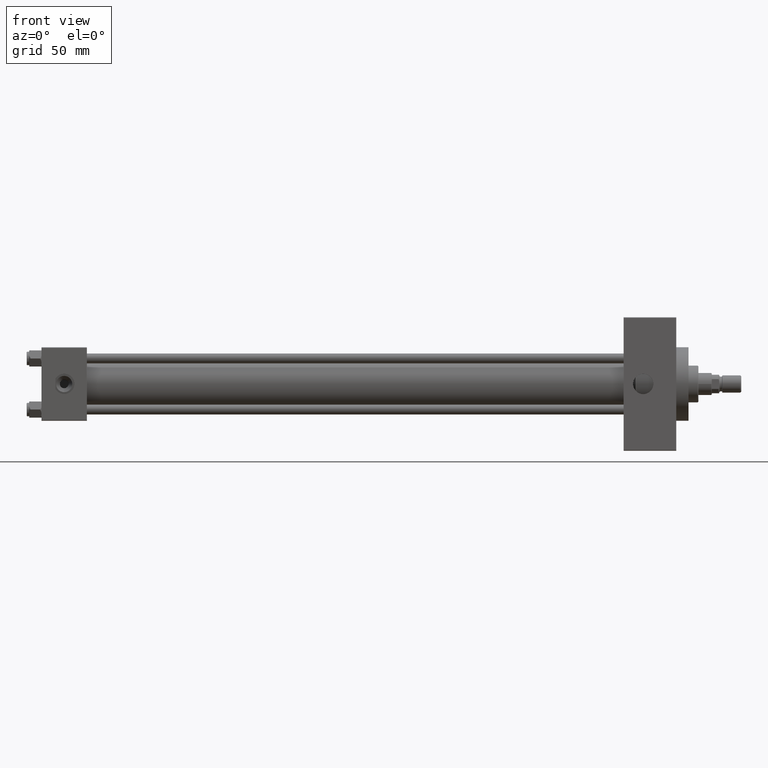
[diagram: clean part render]
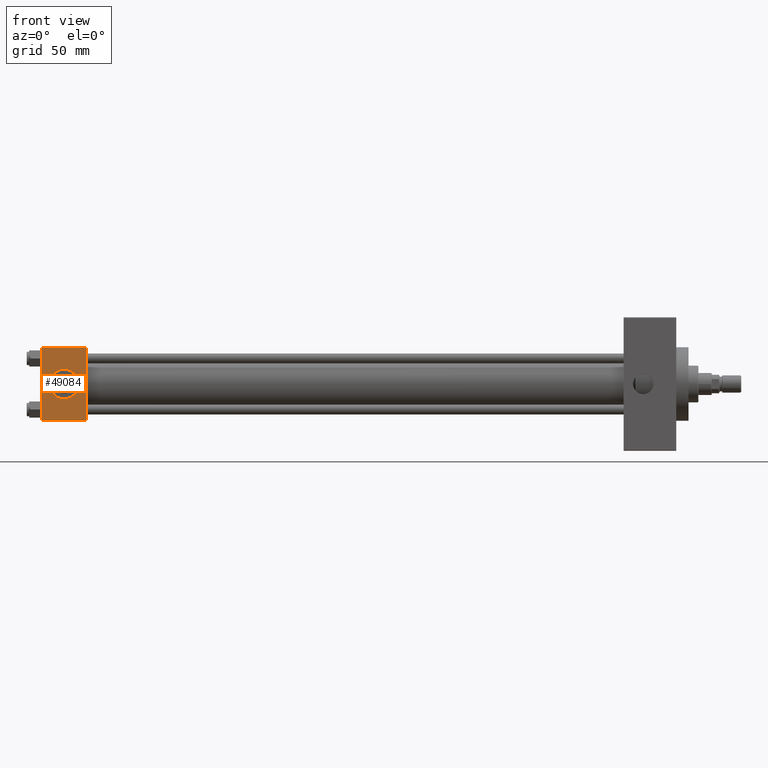
[diagram: same view with one face highlighted and labeled with its STEP entity id]
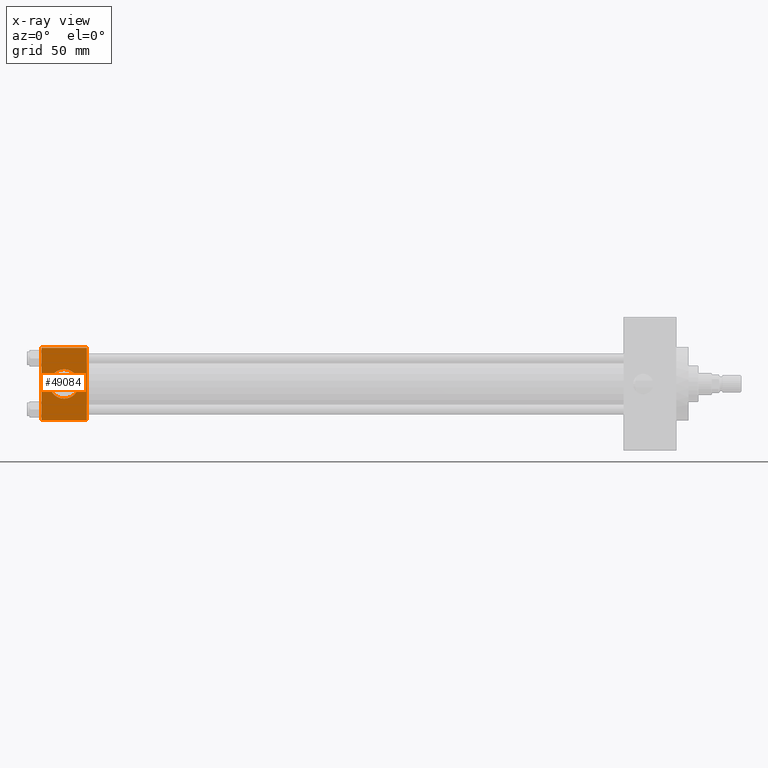
[diagram: x-ray of the same camera — body ghosted, the highlighted face saturated]
A machine part, front view. The second image highlights one B-rep face of the part: STEP entity #49084.
The next image is the same camera in x-ray: the body ghosted, the highlighted face saturated — about 0% of this face is hidden behind the body in this view.
In plain terms, the highlighted planar face has unit normal (0, 1, 0).
Its self-contained STEP definition (entity closure, byte-faithful):
#1728 = LINE ( 'NONE', #16844, #23287 ) ;
#1926 = DIRECTION ( 'NONE',  ( 0.000000000000000000, -1.000000000000000000, -8.673617379884036705E-17 ) ) ;
#2771 = DIRECTION ( 'NONE',  ( 0.000000000000000000, 0.000000000000000000, -1.000000000000000000 ) ) ;
#4230 = CARTESIAN_POINT ( 'NONE',  ( 0.000000000000000000, -30.00000000000000000, -29.50000000000001776 ) ) ;
#4885 = VERTEX_POINT ( 'NONE', #38128 ) ;
#5333 = DIRECTION ( 'NONE',  ( 0.000000000000000000, 0.000000000000000000, -1.000000000000000000 ) ) ;
#7660 = VECTOR ( 'NONE', #33114, 1000.000000000000000 ) ;
#8353 = EDGE_CURVE ( 'NONE', #29908, #4885, #30165, .T. ) ;
#11756 = EDGE_CURVE ( 'NONE', #31087, #48489, #15549, .T. ) ;
#12876 = CARTESIAN_POINT ( 'NONE',  ( 18.50000000000000000, -30.00000000000000000, 0.000000000000000000 ) ) ;
#13013 = EDGE_CURVE ( 'NONE', #48489, #31087, #30907, .T. ) ;
#14320 = DIRECTION ( 'NONE',  ( 1.000000000000000000, 0.000000000000000000, 0.000000000000000000 ) ) ;
#15549 = CIRCLE ( 'NONE', #20402, 12.00000000000000178 ) ;
#16359 = FACE_OUTER_BOUND ( 'NONE', #26194, .T. ) ;
#16414 = DIRECTION ( 'NONE',  ( 0.000000000000000000, -1.000000000000000000, -8.673617379884036705E-17 ) ) ;
#16844 = CARTESIAN_POINT ( 'NONE',  ( 0.000000000000000000, -30.00000000000000000, 29.99999999999999289 ) ) ;
#17376 = VERTEX_POINT ( 'NONE', #37715 ) ;
#17380 = CARTESIAN_POINT ( 'NONE',  ( 0.000000000000000000, -30.00000000000000000, 29.49999999999999289 ) ) ;
#18281 = LINE ( 'NONE', #29103, #7660 ) ;
#18758 = EDGE_CURVE ( 'NONE', #17376, #20622, #18281, .T. ) ;
#20061 = CARTESIAN_POINT ( 'NONE',  ( 18.50000000000000000, -30.00000000000000000, 12.00000000000000178 ) ) ;
#20402 = AXIS2_PLACEMENT_3D ( 'NONE', #47232, #1926, #44444 ) ;
#20622 = VERTEX_POINT ( 'NONE', #17380 ) ;
#21836 = ORIENTED_EDGE ( 'NONE', *, *, #13013, .F. ) ;
#23287 = VECTOR ( 'NONE', #47521, 1000.000000000000000 ) ;
#26194 = EDGE_LOOP ( 'NONE', ( #27506, #46507, #37873, #48150 ) ) ;
#27506 = ORIENTED_EDGE ( 'NONE', *, *, #31915, .T. ) ;
#28396 = VECTOR ( 'NONE', #14320, 1000.000000000000000 ) ;
#29103 = CARTESIAN_POINT ( 'NONE',  ( 37.00000000000000000, -30.00000000000000000, 29.49999999999999289 ) ) ;
#29908 = VERTEX_POINT ( 'NONE', #4230 ) ;
#30165 = LINE ( 'NONE', #41736, #28396 ) ;
#30319 = EDGE_LOOP ( 'NONE', ( #33786, #21836 ) ) ;
#30907 = CIRCLE ( 'NONE', #48570, 12.00000000000000178 ) ;
#31087 = VERTEX_POINT ( 'NONE', #49676 ) ;
#31683 = DIRECTION ( 'NONE',  ( -0.000000000000000000, 1.000000000000000000, 0.000000000000000000 ) ) ;
#31915 = EDGE_CURVE ( 'NONE', #20622, #29908, #1728, .T. ) ;
#33114 = DIRECTION ( 'NONE',  ( -1.000000000000000000, 0.000000000000000000, 0.000000000000000000 ) ) ;
#33786 = ORIENTED_EDGE ( 'NONE', *, *, #11756, .F. ) ;
#34456 = CARTESIAN_POINT ( 'NONE',  ( 37.00000000000000000, -30.00000000000000000, 29.99999999999999289 ) ) ;
#35466 = PLANE ( 'NONE',  #41758 ) ;
#36210 = FACE_BOUND ( 'NONE', #30319, .T. ) ;
#36690 = VECTOR ( 'NONE', #2771, 1000.000000000000000 ) ;
#37715 = CARTESIAN_POINT ( 'NONE',  ( 37.00000000000000000, -30.00000000000000000, 29.49999999999999289 ) ) ;
#37873 = ORIENTED_EDGE ( 'NONE', *, *, #42154, .F. ) ;
#38128 = CARTESIAN_POINT ( 'NONE',  ( 37.00000000000000000, -30.00000000000000000, -29.50000000000001776 ) ) ;
#41736 = CARTESIAN_POINT ( 'NONE',  ( 37.00000000000000000, -30.00000000000000000, -29.50000000000001776 ) ) ;
#41758 = AXIS2_PLACEMENT_3D ( 'NONE', #47538, #31683, #43014 ) ;
#42154 = EDGE_CURVE ( 'NONE', #17376, #4885, #49315, .T. ) ;
#43014 = DIRECTION ( 'NONE',  ( 0.000000000000000000, -0.000000000000000000, 1.000000000000000000 ) ) ;
#44444 = DIRECTION ( 'NONE',  ( 0.000000000000000000, 0.000000000000000000, -1.000000000000000000 ) ) ;
#46507 = ORIENTED_EDGE ( 'NONE', *, *, #8353, .T. ) ;
#47232 = CARTESIAN_POINT ( 'NONE',  ( 18.50000000000000000, -30.00000000000000000, 0.000000000000000000 ) ) ;
#47521 = DIRECTION ( 'NONE',  ( 0.000000000000000000, 0.000000000000000000, -1.000000000000000000 ) ) ;
#47538 = CARTESIAN_POINT ( 'NONE',  ( 37.00000000000000000, -30.00000000000000000, 29.99999999999999289 ) ) ;
#48150 = ORIENTED_EDGE ( 'NONE', *, *, #18758, .T. ) ;
#48489 = VERTEX_POINT ( 'NONE', #20061 ) ;
#48570 = AXIS2_PLACEMENT_3D ( 'NONE', #12876, #16414, #5333 ) ;
#49084 = ADVANCED_FACE ( 'NONE', ( #36210, #16359 ), #35466, .F. ) ;
#49315 = LINE ( 'NONE', #34456, #36690 ) ;
#49676 = CARTESIAN_POINT ( 'NONE',  ( 18.50000000000000000, -30.00000000000000000, -12.00000000000000178 ) ) ;